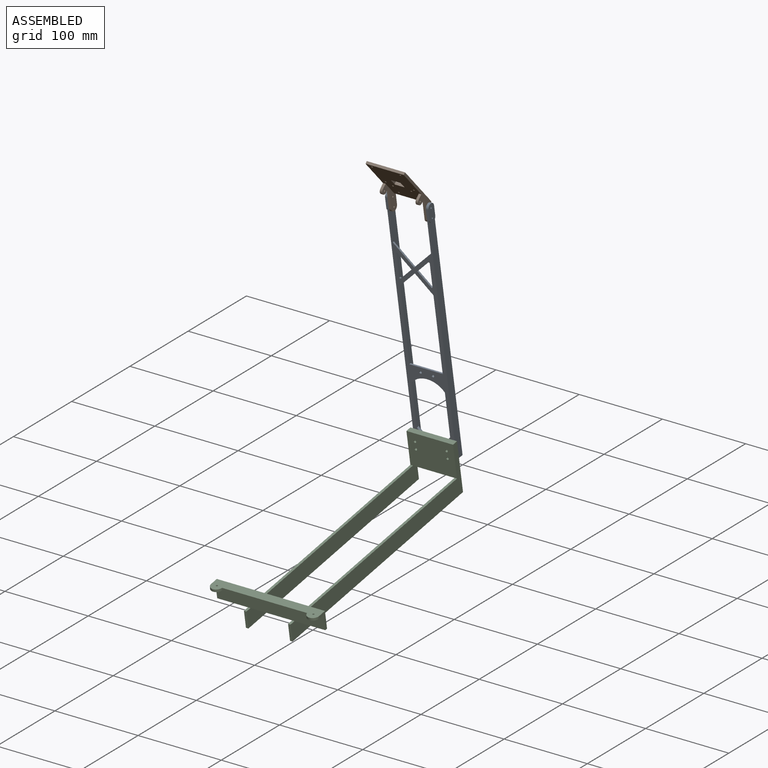
[diagram: assembled view]
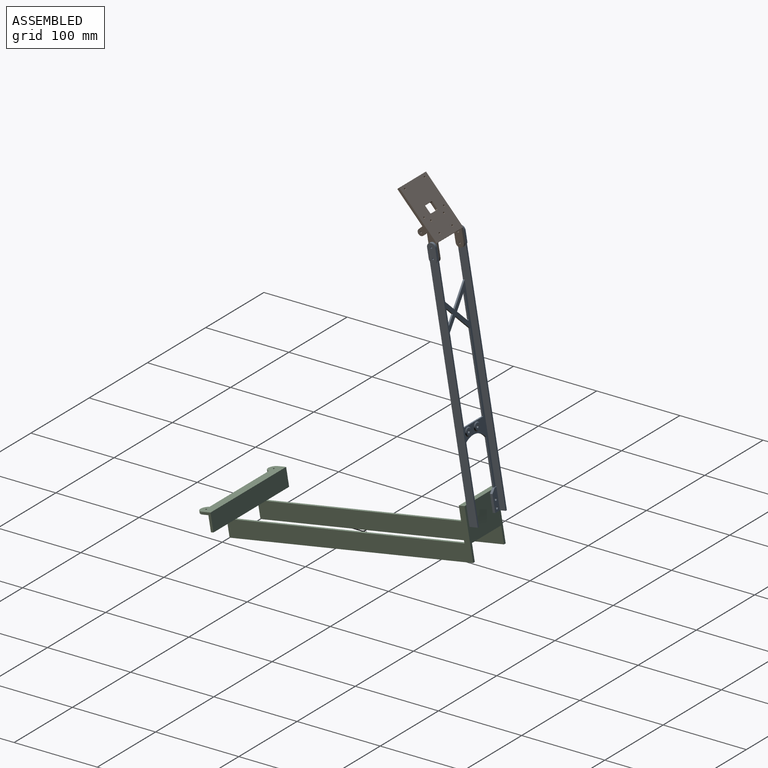
[diagram: assembled view, second angle]
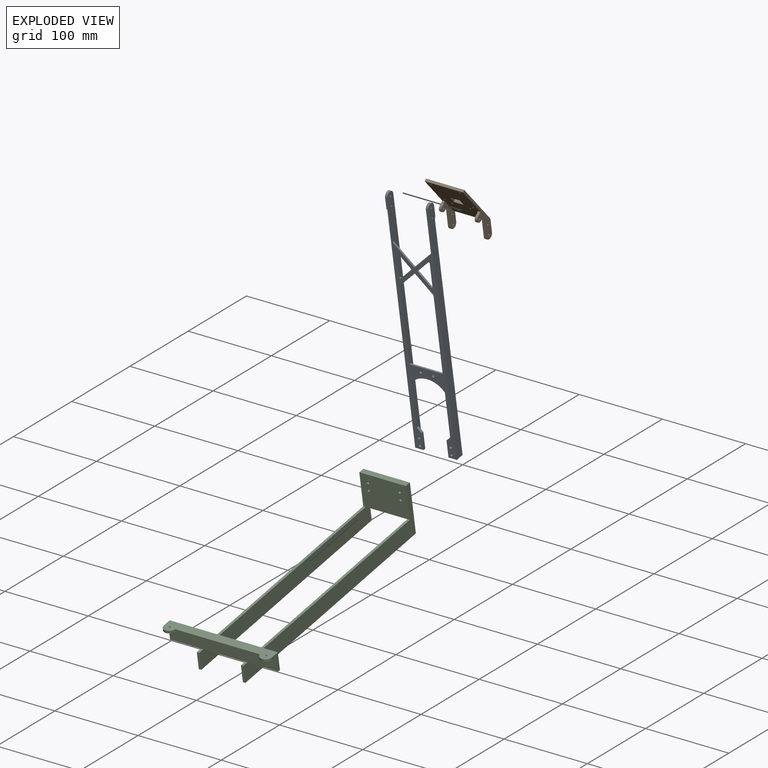
[diagram: exploded view]
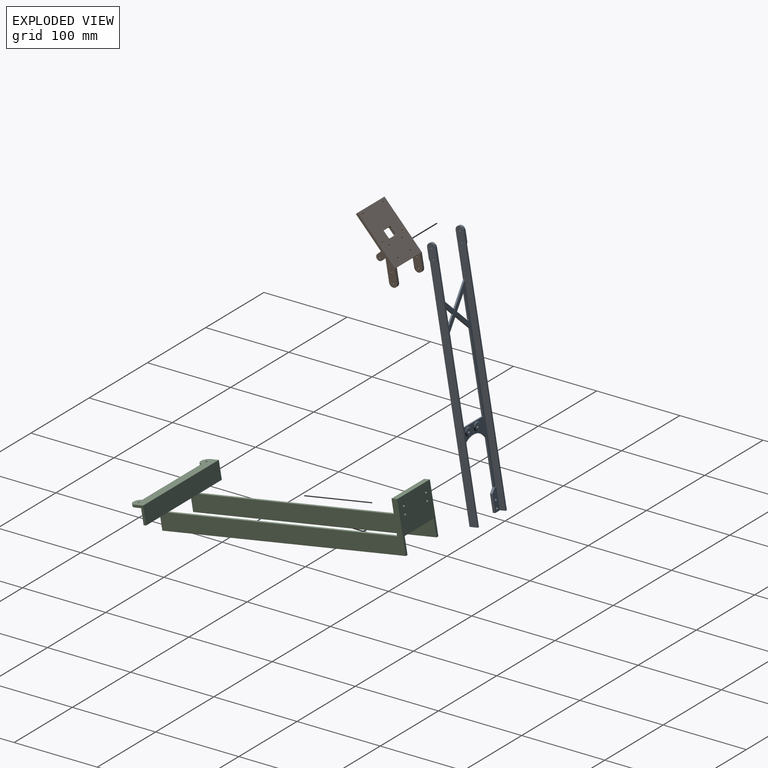
[diagram: exploded view, second angle]
ASSEMBLY  parts=3 mates=2
PART A: 58 faces, bbox 52x10x300 mm
  f0: plane 218x46mm, normal (0,-1,0), area 2288mm2, adj f1,f2,f7,f8,f9,f10,f11,f12
  f1: plane 300x10mm, normal (-1,0,0), area 2472mm2, adj f0,f3,f5,f6,f33,f40,f41,f42
  f2: plane 300x10mm, normal (1,0,0), area 2472mm2, adj f0,f4,f5,f13,f15,f43,f44,f45
  f3: plane 295x3mm, normal (0,-1,0), area 602mm2, adj f1,f6,f23,f42,f52,f53
  f4: plane 295x3mm, normal (0,-1,0), area 602mm2, adj f2,f14,f15,f45,f50,f51
  f5: plane 295x52mm, normal (0,1,0), area 3981.7mm2, adj f1,f2,f6,f7,f8,f9,f10,f11
  f6: plane 10x10mm, normal (0,0,-1), area 44mm2, adj f1,f3,f5,f22,f23,f55
  f7: plane 28.1x2mm, normal (-1,0,0), area 56.2mm2, adj f0,f5,f38,f39
  f8: plane 14.76x14.76mm, normal (0.71,0,0.71), area 41.7mm2, adj f0,f5,f35,f38
  f9: plane 20x20mm, normal (0.71,0,-0.71), area 56.6mm2, adj f0,f5,f10,f26
  f10: plane 20x20mm, normal (-0.71,0,-0.71), area 56.6mm2, adj f0,f5,f9,f11
  f11: plane 92.93x2mm, normal (-1,0,0), area 185.9mm2, adj f0,f5,f10,f12
  f12: plane 40x2mm, normal (0,0,1), area 80mm2, adj f0,f5,f11,f26
  f13: plane 23x23mm, normal (0.71,0,0.71), area 65.1mm2, adj f0,f2,f5,f33
  f14: plane 283x10mm, normal (-1,0,0), area 2790.7mm2, adj f4,f5,f15,f50
  f15: plane 10x10mm, normal (0,0,-1), area 44mm2, adj f2,f4,f5,f14,f16,f47
  f16: plane 20x3mm, normal (1,0,0), area 60mm2, adj f5,f15,f17,f47
  f17: plane 5x5mm, normal (0.71,0,0.71), area 21.2mm2, adj f5,f16,f18,f46,f47
  f18: plane 53x2mm, normal (1,0,0), area 106mm2, adj f0,f5,f17,f19
  f19: cylinder r=25mm len=40mm, axis (0,1,0), area 92.7mm2, adj f0,f5,f18,f20
  f20: plane 53x2mm, normal (-1,0,0), area 106mm2, adj f0,f5,f19,f21
  f21: plane 5x5mm, normal (-0.71,0,0.71), area 21.2mm2, adj f5,f20,f22,f54,f55
  f22: plane 20x3mm, normal (-1,0,0), area 60mm2, adj f5,f6,f21,f55
  f23: plane 283x10mm, normal (1,0,0), area 2790.7mm2, adj f3,f5,f6,f52
  f24: plane 14.76x14.76mm, normal (-0.71,0,0.71), area 41.7mm2, adj f0,f5,f34,f36
  f25: plane 28.1x2mm, normal (1,0,0), area 56.2mm2, adj f0,f5,f36,f37
  f26: plane 92.93x2mm, normal (1,0,0), area 185.9mm2, adj f0,f5,f9,f12
  f27: cylinder r=1.5mm len=3mm, axis (0,1,0), area 28.3mm2, adj f5,f47
  f28: cylinder r=1.5mm len=3mm, axis (0,1,0), area 28.3mm2, adj f5,f56
  f29: cylinder r=1.5mm len=3mm, axis (0,1,0), area 28.3mm2, adj f5,f48
  f30: cylinder r=1.5mm len=3mm, axis (0,1,0), area 28.3mm2, adj f5,f47
  f31: cylinder r=1.5mm len=3mm, axis (0,1,0), area 28.3mm2, adj f5,f55
  f32: cylinder r=1.5mm len=3mm, axis (0,1,0), area 28.3mm2, adj f5,f55
  f33: plane 23x23mm, normal (-0.71,0,0.71), area 65.1mm2, adj f0,f1,f5,f13
  f34: plane 14.76x14.76mm, normal (-0.71,0,-0.71), area 41.7mm2, adj f0,f5,f24,f37
  f35: plane 14.76x14.76mm, normal (0.71,0,-0.71), area 41.7mm2, adj f0,f5,f8,f39
  f36: cylinder r=1mm len=2mm, axis (0,-1,0), area 4.7mm2, adj f0,f5,f24,f25
  f37: cylinder r=1mm len=2mm, axis (0,-1,0), area 4.7mm2, adj f0,f5,f25,f34
  f38: cylinder r=1mm len=2mm, axis (0,-1,0), area 4.7mm2, adj f0,f5,f7,f8
  f39: cylinder r=1mm len=2mm, axis (0,-1,0), area 4.7mm2, adj f0,f5,f7,f35
  f40: cylinder r=1mm len=3mm, axis (-1,0,0), area 18.8mm2, adj f1,f53
  f41: cylinder r=1mm len=3mm, axis (-1,0,0), area 18.8mm2, adj f1,f53
  f42: cylinder r=5mm len=10mm, axis (-1,0,0), area 47.1mm2, adj f1,f3,f5,f53
  f43: cylinder r=1mm len=3mm, axis (-1,0,0), area 18.8mm2, adj f2,f51
  f44: cylinder r=1mm len=3mm, axis (-1,0,0), area 18.8mm2, adj f2,f51
  f45: cylinder r=5mm len=10mm, axis (-1,0,0), area 47.1mm2, adj f2,f4,f5,f51
  f46: plane 3x1mm, normal (0,0,1), area 3mm2, adj f0,f2,f17,f47
  f47: plane 25x8mm, normal (0,-1,0), area 173.4mm2, adj f2,f15,f16,f17,f27,f30,f46
  f48: plane 8x8mm, normal (0,-1,0), area 43.2mm2, adj f29,f49
  f49: cone r=4mm half-angle=45deg, axis (0,1,0), area 40mm2, adj f0,f48
  f50: cylinder r=5mm len=10mm, axis (1,0,0), area 15.7mm2, adj f4,f5,f14,f51
  f51: plane 22x10mm, normal (-1,0,0), area 192.3mm2, adj f4,f5,f43,f44,f45,f50
  f52: cylinder r=5mm len=10mm, axis (-1,0,0), area 15.7mm2, adj f3,f5,f23,f53
  f53: plane 22x10mm, normal (1,0,0), area 192.3mm2, adj f3,f5,f40,f41,f42,f52
  f54: plane 3x1mm, normal (0,0,1), area 3mm2, adj f0,f1,f21,f55
  f55: plane 25x8mm, normal (0,-1,0), area 173.4mm2, adj f1,f6,f21,f22,f31,f32,f54
  f56: plane 8x8mm, normal (0,-1,0), area 43.2mm2, adj f28,f57
  f57: cone r=4mm half-angle=45deg, axis (0,1,0), area 40mm2, adj f0,f56
PART B: 44 faces, bbox 46x38.5x76.4 mm
  f0: plane 16x3mm, normal (0,-1,0), area 48mm2, adj f3,f20,f22,f23
  f1: plane 55.35x46mm, normal (0,0.84,-0.54), area 2761.3mm2, adj f11,f12,f19,f21,f22,f23,f24,f25
  f2: plane 16x3mm, normal (0,-1,0), area 48mm2, adj f4,f20,f21,f25
  f3: cylinder r=5mm len=10mm, axis (-1,0,0), area 47.1mm2, adj f0,f5,f22,f23
  f4: cylinder r=5mm len=10mm, axis (-1,0,0), area 47.1mm2, adj f2,f6,f21,f25
  f5: plane 25.89x3mm, normal (0,1,0), area 77.7mm2, adj f3,f7,f22,f23
  f6: plane 25.89x3mm, normal (0,1,0), area 77.7mm2, adj f4,f8,f21,f25
  f7: plane 5.03x3.27mm, normal (0,-0.54,-0.84), area 18mm2, adj f5,f9,f22,f24
  f8: plane 5.03x3.27mm, normal (0,-0.54,-0.84), area 18mm2, adj f6,f10,f21,f26
  f9: cylinder r=4mm len=7.35mm, axis (-1,0,0), area 37.7mm2, adj f7,f11,f22,f24
  f10: cylinder r=4mm len=7.35mm, axis (-1,0,0), area 37.7mm2, adj f8,f12,f21,f26
  f11: plane 5.03x3.27mm, normal (0,0.54,0.84), area 18mm2, adj f1,f9,f22,f24
  f12: plane 5.03x3.27mm, normal (0,0.54,0.84), area 18mm2, adj f1,f10,f21,f26
  f13: cylinder r=1mm len=3mm, axis (-1,0,0), area 18.8mm2, adj f22,f23
  f14: cylinder r=1mm len=3mm, axis (-1,0,0), area 18.8mm2, adj f21,f25
  f15: cylinder r=1mm len=3mm, axis (-1,0,0), area 18.8mm2, adj f22,f24
  f16: cylinder r=1mm len=3mm, axis (-1,0,0), area 18.8mm2, adj f21,f26
  f17: cylinder r=1mm len=3mm, axis (-1,0,0), area 18.8mm2, adj f22,f23
  f18: cylinder r=1mm len=3mm, axis (-1,0,0), area 18.8mm2, adj f21,f25
  f19: plane 46x2.52mm, normal (0,0.54,0.84), area 138mm2, adj f1,f20,f21,f22
  f20: plane 55.35x46mm, normal (0,-0.84,0.54), area 2891.7mm2, adj f0,f2,f19,f21,f22,f27,f28,f29
  f21: plane 76.35x38.46mm, normal (1,0,0), area 489.8mm2, adj f1,f2,f4,f6,f8,f10,f12,f14
  f22: plane 76.35x38.46mm, normal (-1,0,0), area 489.8mm2, adj f0,f1,f3,f5,f7,f9,f11,f13
  f23: plane 30.89x10mm, normal (1,0,0), area 221.8mm2, adj f0,f1,f3,f5,f13,f17,f43
  f24: plane 11.21x10.62mm, normal (1,0,0), area 70mm2, adj f1,f7,f9,f11,f15
  f25: plane 30.89x10mm, normal (-1,0,0), area 221.8mm2, adj f1,f2,f4,f6,f14,f18,f43
  f26: plane 11.21x10.62mm, normal (-1,0,0), area 70mm2, adj f1,f8,f10,f12,f16
  f27: cylinder r=1mm len=3.61mm, axis (0,-0.84,0.54), area 18.8mm2, adj f1,f20
  f28: cylinder r=1mm len=3.06mm, axis (0,-0.84,0.54), area 4.7mm2, adj f1,f20,f29,f33
  f29: plane 10x2.52mm, normal (0,0.54,0.84), area 30mm2, adj f1,f20,f28,f30
  f30: cylinder r=1mm len=3.06mm, axis (0,-0.84,0.54), area 4.7mm2, adj f1,f20,f29,f31
  f31: plane 8.34x6.87mm, normal (-1,0,0), area 24mm2, adj f1,f20,f30,f32
  f32: cylinder r=1mm len=3.06mm, axis (0,-0.84,0.54), area 4.7mm2, adj f1,f20,f31,f34
  f33: plane 8.34x6.87mm, normal (1,0,0), area 24mm2, adj f1,f20,f28,f35
  f34: plane 10x2.52mm, normal (0,-0.54,-0.84), area 30mm2, adj f1,f20,f32,f35
  f35: cylinder r=1mm len=3.06mm, axis (0,-0.84,0.54), area 4.7mm2, adj f1,f20,f33,f34
  f36: cylinder r=1mm len=3.61mm, axis (0,-0.84,0.54), area 18.8mm2, adj f1,f20
  f37: cylinder r=1mm len=3.61mm, axis (0,-0.84,0.54), area 18.8mm2, adj f1,f20
  f38: cylinder r=1mm len=3.61mm, axis (0,-0.84,0.54), area 18.8mm2, adj f1,f20
  f39: cylinder r=1mm len=3.61mm, axis (0,-0.84,0.54), area 18.8mm2, adj f1,f20
  f40: cylinder r=1mm len=3.61mm, axis (0,-0.84,0.54), area 18.8mm2, adj f1,f20
  f41: cylinder r=1mm len=3.61mm, axis (0,-0.84,0.54), area 18.8mm2, adj f1,f20
  f42: cylinder r=1mm len=3.61mm, axis (0,-0.84,0.54), area 18.8mm2, adj f1,f20
  f43: plane 40x2.52mm, normal (0,-0.54,-0.84), area 120mm2, adj f1,f20,f23,f25
PART C: 34 faces, bbox 304x130x60 mm
  f0: plane 37x3mm, normal (0,0,-1), area 111mm2, adj f15,f27,f28,f33
  f1: plane 50x3mm, normal (0,0,-1), area 150mm2, adj f19,f23,f27,f33
  f2: plane 37x3mm, normal (0,0,-1), area 111mm2, adj f10,f26,f27,f33
  f3: cylinder r=7mm len=13.93mm, axis (0,0,-1), area 63mm2, adj f4,f28,f29,f30
  f4: plane 102.14x3mm, normal (-1,0,0), area 306.4mm2, adj f3,f6,f29,f30
  f5: cylinder r=1mm len=3mm, axis (0,0,-1), area 18.8mm2, adj f29,f30
  f6: cylinder r=7mm len=13.93mm, axis (0,0,-1), area 63mm2, adj f4,f26,f29,f30
  f7: cylinder r=1mm len=3mm, axis (0,0,-1), area 18.8mm2, adj f29,f30
  f8: plane 50x7mm, normal (0,0,-1), area 350mm2, adj f16,f17,f19,f23
  f9: plane 56x7mm, normal (0,0,1), area 392mm2, adj f10,f15,f16,f17
  f10: plane 297x60mm, normal (0,-1,0), area 6220mm2, adj f2,f9,f16,f17,f22,f24,f25,f31
  f11: cylinder r=1.5mm len=7mm, axis (-1,0,0), area 66mm2, adj f16,f17
  f12: cylinder r=1.5mm len=7mm, axis (-1,0,0), area 66mm2, adj f16,f17
  f13: cylinder r=1.5mm len=7mm, axis (-1,0,0), area 66mm2, adj f16,f17
  f14: cylinder r=1.5mm len=7mm, axis (-1,0,0), area 66mm2, adj f16,f17
  f15: plane 297x60mm, normal (0,1,0), area 6220mm2, adj f0,f9,f16,f17,f18,f20,f21,f32
  f16: plane 60x56mm, normal (1,0,0), area 2331.7mm2, adj f8,f9,f10,f11,f12,f13,f14,f15
  f17: plane 56x40mm, normal (-1,0,0), area 2211.7mm2, adj f8,f9,f10,f11,f12,f13,f14,f15
  f18: plane 280x3mm, normal (0,0,1), area 840mm2, adj f15,f17,f19,f27
  f19: plane 297x20mm, normal (0,-1,0), area 5940mm2, adj f1,f8,f16,f18,f20,f21,f32
  f20: plane 20x3mm, normal (-1,0,0), area 60mm2, adj f15,f19,f21,f32
  f21: plane 297x3mm, normal (0,0,-1), area 891mm2, adj f15,f16,f19,f20
  f22: plane 280x3mm, normal (0,0,1), area 840mm2, adj f10,f17,f23,f27
  f23: plane 297x20mm, normal (0,1,0), area 5940mm2, adj f1,f8,f16,f22,f24,f25,f31
  f24: plane 20x3mm, normal (-1,0,0), area 60mm2, adj f10,f23,f25,f31
  f25: plane 297x3mm, normal (0,0,-1), area 891mm2, adj f10,f16,f23,f24
  f26: plane 21x10mm, normal (0,-1,0), area 84mm2, adj f2,f6,f27,f29,f30,f33
  f27: plane 130x21mm, normal (1,0,0), area 2730mm2, adj f0,f1,f2,f18,f22,f26,f28,f29
  f28: plane 21x10mm, normal (0,1,0), area 84mm2, adj f0,f3,f27,f29,f30,f33
  f29: plane 130x17mm, normal (0,0,1), area 1549.7mm2, adj f3,f4,f5,f6,f7,f26,f27,f28
  f30: plane 130x14mm, normal (0,0,-1), area 1159.7mm2, adj f3,f4,f5,f6,f7,f26,f28,f33
  f31: plane 7x3mm, normal (0,0,1), area 21mm2, adj f10,f23,f24,f33
  f32: plane 7x3mm, normal (0,0,1), area 21mm2, adj f15,f19,f20,f33
  f33: plane 130x18mm, normal (-1,0,0), area 2340mm2, adj f0,f1,f2,f26,f28,f30,f31,f32
PLACE A rot(axis=(0,0.09,-1),180deg) t=(-901.58,-196.99,45.56)mm
PLACE B rot(axis=(0,0.09,-1),180deg) t=(-878.58,-229.56,263.19)mm
PLACE C rot(axis=(0.09,-0.09,0.99),90.4deg) t=(-901.58,-197.07,4.95)mm
MATE revolute B.f3 <-> A.f40  axis (1,0,0) through (-878.58,-229.56,263.19)mm
MATE revolute C.f11 <-> A.f31  axis (0,0.99,0.17) through (-920.58,-188.46,-3.71)mm
